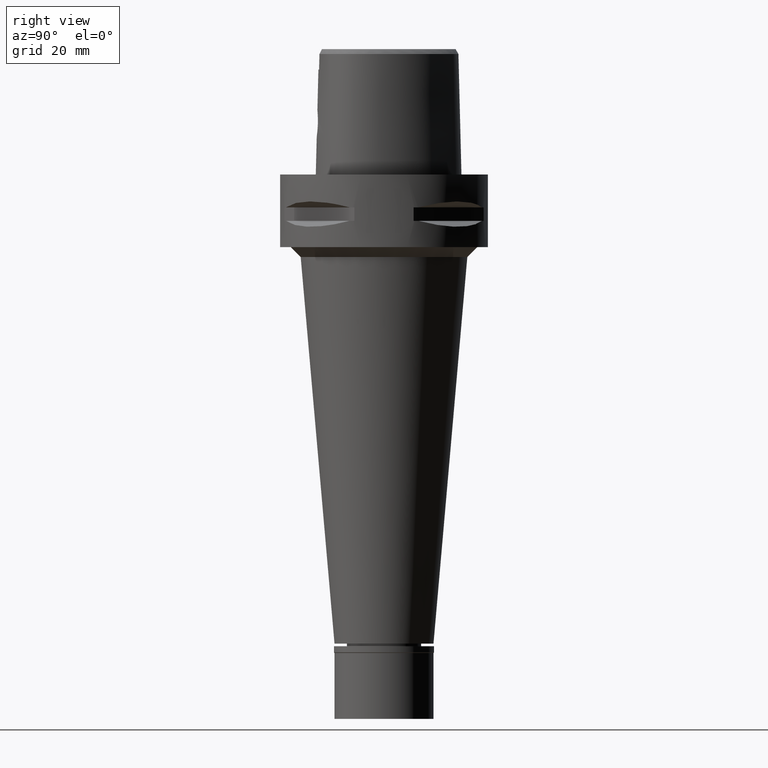
[diagram: clean part render]
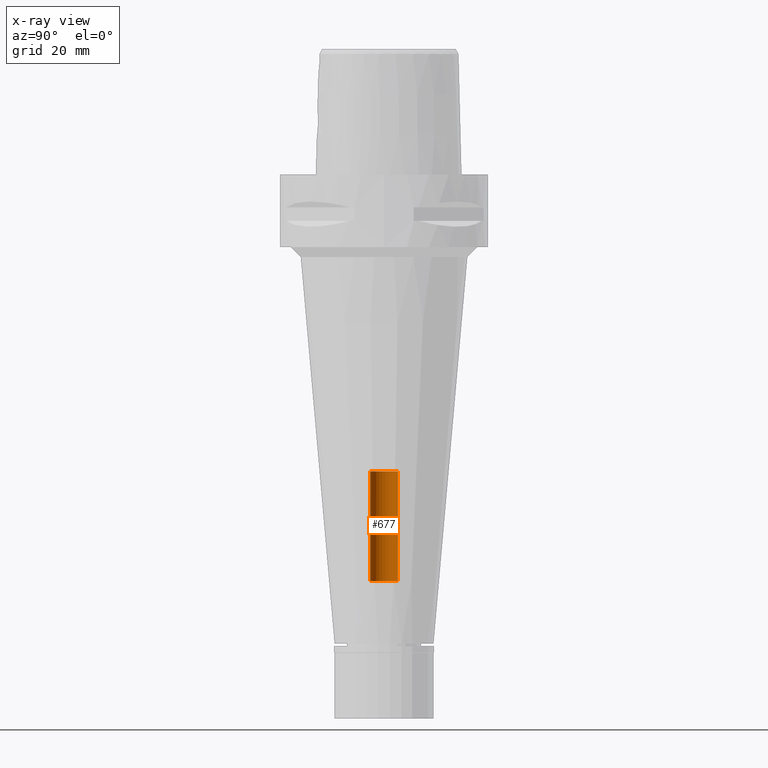
[diagram: x-ray — body ghosted, one internal face saturated and labeled with its STEP entity id]
A machine part, right view, then the same camera in x-ray: the body is ghosted and one INTERNAL B-rep face — a face not visible from any outside direction — is saturated and labeled: STEP entity #677.
In plain terms, the highlighted cylindrical surface (edge-blend (fillet) strip) has radius 4.2 mm, axis along (0, 0, -1).
Its self-contained STEP definition (entity closure, byte-faithful):
#247 = DIRECTION ( 'NONE',  ( 0.0000000000000000000, 0.0000000000000000000, 1.000000000000000000 ) ) ;
#424 = CYLINDRICAL_SURFACE ( 'NONE', #3171, 4.200000000000000178 ) ;
#634 = VERTEX_POINT ( 'NONE', #3108 ) ;
#654 = AXIS2_PLACEMENT_3D ( 'NONE', #3379, #1372, #2562 ) ;
#677 = ADVANCED_FACE ( 'NONE', ( #2688 ), #424, .F. ) ;
#726 = DIRECTION ( 'NONE',  ( 0.0000000000000000000, -1.000000000000000000, 0.0000000000000000000 ) ) ;
#817 = CIRCLE ( 'NONE', #654, 4.200000000000000178 ) ;
#983 = CIRCLE ( 'NONE', #2353, 4.200000000000000178 ) ;
#1024 = CARTESIAN_POINT ( 'NONE',  ( 0.0000000000000000000, -4.200000000000000178, -123.3000000000000114 ) ) ;
#1068 = CARTESIAN_POINT ( 'NONE',  ( 0.0000000000000000000, -4.200000000000000178, -123.3000000000000114 ) ) ;
#1140 = CARTESIAN_POINT ( 'NONE',  ( 0.0000000000000000000, 0.0000000000000000000, -123.3000000000000114 ) ) ;
#1143 = ORIENTED_EDGE ( 'NONE', *, *, #3622, .T. ) ;
#1237 = CARTESIAN_POINT ( 'NONE',  ( 0.0000000000000000000, 4.200000000000000178, -123.3000000000000114 ) ) ;
#1372 = DIRECTION ( 'NONE',  ( 0.0000000000000000000, 0.0000000000000000000, 1.000000000000000000 ) ) ;
#1535 = LINE ( 'NONE', #2993, #1631 ) ;
#1631 = VECTOR ( 'NONE', #4557, 1000.000000000000000 ) ;
#1922 = EDGE_CURVE ( 'NONE', #4916, #3505, #983, .T. ) ;
#1979 = CARTESIAN_POINT ( 'NONE',  ( 0.0000000000000000000, 0.0000000000000000000, 7.915000000000000036 ) ) ;
#1996 = CARTESIAN_POINT ( 'NONE',  ( 0.0000000000000000000, -4.200000000000000178, -90.00000000000000000 ) ) ;
#2279 = VECTOR ( 'NONE', #247, 1000.000000000000000 ) ;
#2335 = DIRECTION ( 'NONE',  ( 0.0000000000000000000, 0.0000000000000000000, -1.000000000000000000 ) ) ;
#2353 = AXIS2_PLACEMENT_3D ( 'NONE', #1140, #3110, #2387 ) ;
#2370 = ORIENTED_EDGE ( 'NONE', *, *, #3342, .F. ) ;
#2387 = DIRECTION ( 'NONE',  ( 0.0000000000000000000, -1.000000000000000000, 0.0000000000000000000 ) ) ;
#2562 = DIRECTION ( 'NONE',  ( 0.0000000000000000000, 1.000000000000000000, 0.0000000000000000000 ) ) ;
#2688 = FACE_OUTER_BOUND ( 'NONE', #4904, .T. ) ;
#2788 = VERTEX_POINT ( 'NONE', #1996 ) ;
#2855 = ORIENTED_EDGE ( 'NONE', *, *, #1922, .T. ) ;
#2993 = CARTESIAN_POINT ( 'NONE',  ( 0.0000000000000000000, 4.200000000000000178, -123.3000000000000114 ) ) ;
#3108 = CARTESIAN_POINT ( 'NONE',  ( 0.0000000000000000000, 4.200000000000000178, -90.00000000000000000 ) ) ;
#3110 = DIRECTION ( 'NONE',  ( 0.0000000000000000000, 0.0000000000000000000, -1.000000000000000000 ) ) ;
#3171 = AXIS2_PLACEMENT_3D ( 'NONE', #1979, #2335, #726 ) ;
#3342 = EDGE_CURVE ( 'NONE', #4916, #2788, #4882, .T. ) ;
#3374 = EDGE_CURVE ( 'NONE', #634, #2788, #817, .T. ) ;
#3379 = CARTESIAN_POINT ( 'NONE',  ( 0.0000000000000000000, 0.0000000000000000000, -90.00000000000000000 ) ) ;
#3505 = VERTEX_POINT ( 'NONE', #1237 ) ;
#3622 = EDGE_CURVE ( 'NONE', #3505, #634, #1535, .T. ) ;
#4557 = DIRECTION ( 'NONE',  ( 0.0000000000000000000, 0.0000000000000000000, 1.000000000000000000 ) ) ;
#4563 = ORIENTED_EDGE ( 'NONE', *, *, #3374, .T. ) ;
#4882 = LINE ( 'NONE', #1024, #2279 ) ;
#4904 = EDGE_LOOP ( 'NONE', ( #4563, #2370, #2855, #1143 ) ) ;
#4916 = VERTEX_POINT ( 'NONE', #1068 ) ;